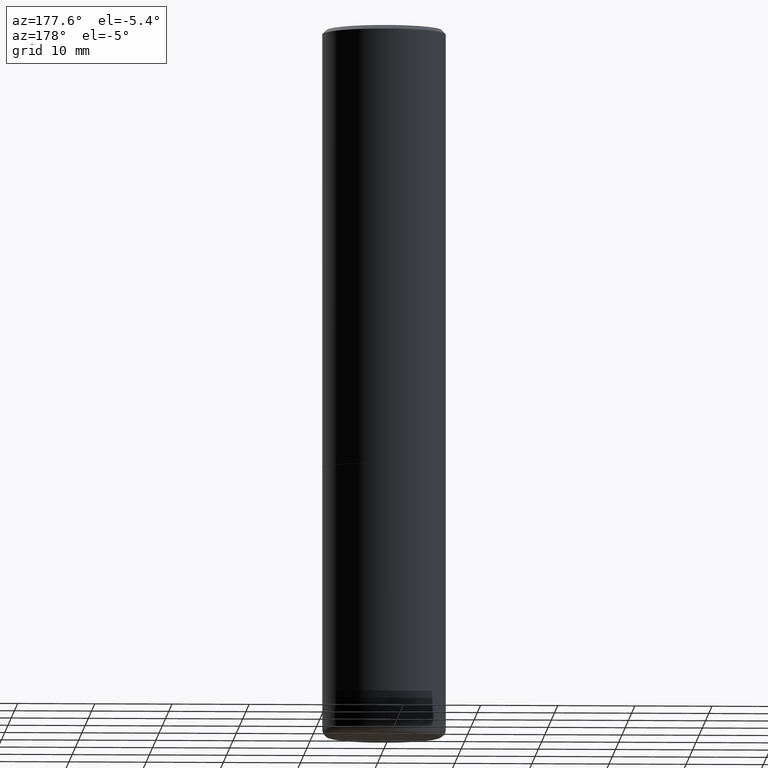
[diagram: clean part render]
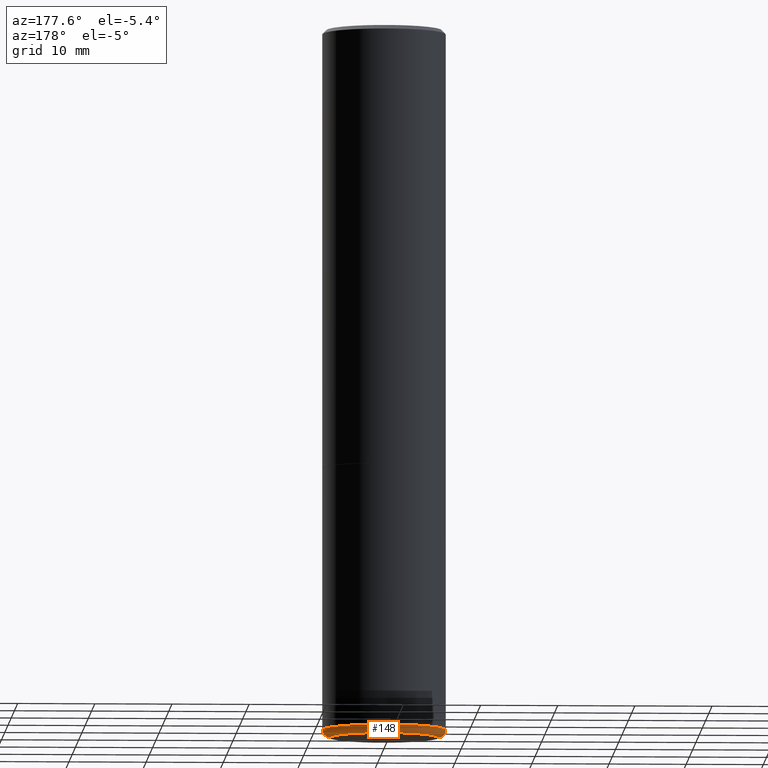
[diagram: same view with one face highlighted and labeled with its STEP entity id]
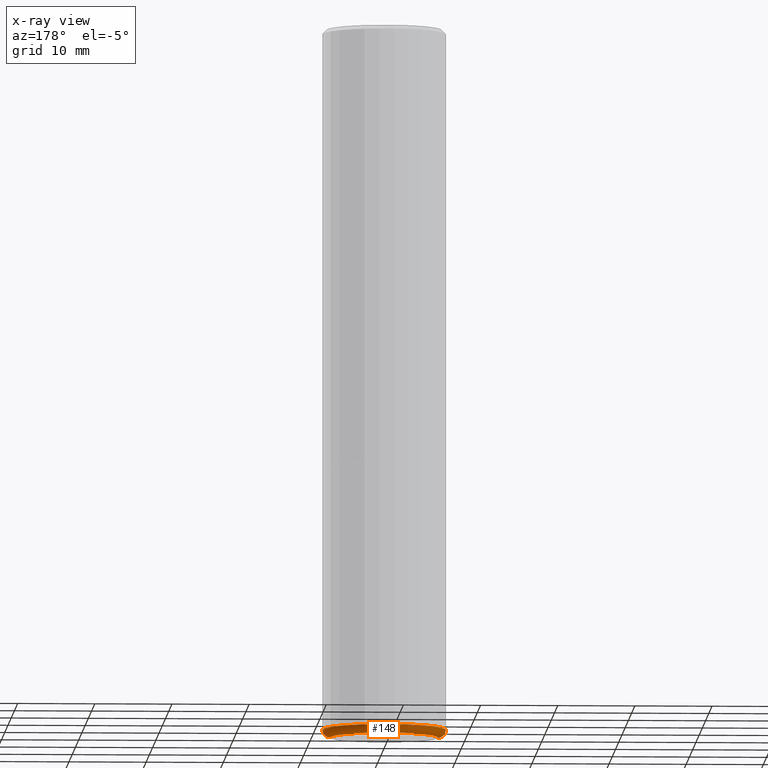
[diagram: x-ray of the same camera — body ghosted, the highlighted face saturated]
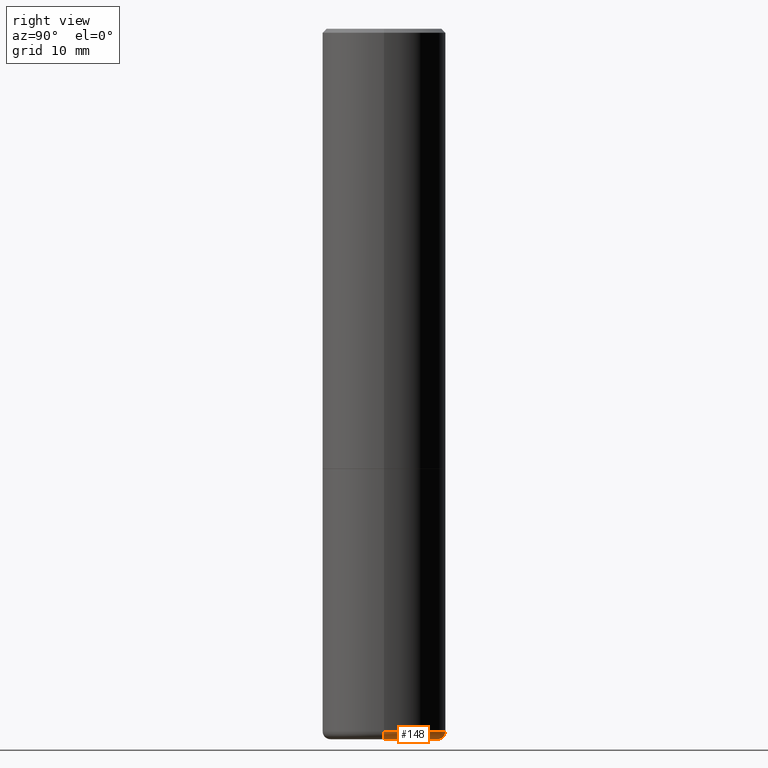
[diagram: same view with one face highlighted and labeled with its STEP entity id]
A machine part, auxiliary view. The second image highlights one B-rep face of the part: STEP entity #148.
The next image is the same camera in x-ray: the body ghosted, the highlighted face saturated — about 0% of this face is hidden behind the body in this view.
A second angle (right view) of the same face is appended — the face is thin or edge-on in the first view.
In plain terms, the highlighted toroidal blend (fillet) surface has major radius 6.999 mm and minor (blend) radius 1.0008 mm.
Its self-contained STEP definition (entity closure, byte-faithful):
#8 = DIRECTION ( 'NONE',  ( -1.000000000000000000, 7.105427357601001859E-15, 0.000000000000000000 ) ) ;
#13 = ORIENTED_EDGE ( 'NONE', *, *, #220, .T. ) ;
#14 = AXIS2_PLACEMENT_3D ( 'NONE', #88, #246, #8 ) ;
#26 = CARTESIAN_POINT ( 'NONE',  ( 0.3149500000000001743, -1.470786513987674265E-14, -3.582599999999999785 ) ) ;
#27 = DIRECTION ( 'NONE',  ( -2.445468806185136597E-29, 3.491481338843145583E-15, 1.000000000000000000 ) ) ;
#32 = AXIS2_PLACEMENT_3D ( 'NONE', #129, #165, #194 ) ;
#35 = CIRCLE ( 'NONE', #262, 0.2755500000000000171 ) ;
#37 = EDGE_CURVE ( 'NONE', #381, #358, #245, .T. ) ;
#58 = CARTESIAN_POINT ( 'NONE',  ( 0.2755500000000000171, -1.457030077512632343E-14, -3.621999999999999886 ) ) ;
#75 = VERTEX_POINT ( 'NONE', #367 ) ;
#78 = EDGE_CURVE ( 'NONE', #358, #410, #363, .T. ) ;
#88 = CARTESIAN_POINT ( 'NONE',  ( -0.2755500000000000171, -1.055068053615249541E-14, -3.582599999999999785 ) ) ;
#116 = DIRECTION ( 'NONE',  ( 1.000000000000000000, -6.982962677686266711E-15, 4.883557194083112901E-29 ) ) ;
#120 = DIRECTION ( 'NONE',  ( -2.445468806185136597E-29, 3.491481338843145583E-15, 1.000000000000000000 ) ) ;
#124 = ORIENTED_EDGE ( 'NONE', *, *, #37, .F. ) ;
#129 = CARTESIAN_POINT ( 'NONE',  ( 0.2755500000000000171, -1.443273641037590422E-14, -3.582599999999999785 ) ) ;
#148 = ADVANCED_FACE ( 'NONE', ( #174 ), #248, .T. ) ;
#155 = DIRECTION ( 'NONE',  ( -2.445468806185136597E-29, 3.491481338843145583E-15, 1.000000000000000000 ) ) ;
#165 = DIRECTION ( 'NONE',  ( -6.982962677686266711E-15, -1.000000000000000000, 3.491481338843145583E-15 ) ) ;
#174 = FACE_OUTER_BOUND ( 'NONE', #330, .T. ) ;
#178 = CARTESIAN_POINT ( 'NONE',  ( 8.761136545038868759E-29, -1.250858104453945120E-14, -3.582599999999999785 ) ) ;
#188 = CARTESIAN_POINT ( 'NONE',  ( 8.857488016002564476E-29, -1.264614540928987199E-14, -3.621999999999999886 ) ) ;
#194 = DIRECTION ( 'NONE',  ( 1.000000000000000000, -6.982962677686255667E-15, 0.000000000000000000 ) ) ;
#217 = DIRECTION ( 'NONE',  ( 1.000000000000000000, -6.982962677686268288E-15, 0.000000000000000000 ) ) ;
#220 = EDGE_CURVE ( 'NONE', #381, #75, #35, .T. ) ;
#245 = CIRCLE ( 'NONE', #32, 0.03940000000000012936 ) ;
#246 = DIRECTION ( 'NONE',  ( 7.105427357601001859E-15, 1.000000000000000000, -3.491481338843145583E-15 ) ) ;
#248 = TOROIDAL_SURFACE ( 'NONE', #418, 0.2755500000000000171, 0.03940000000000009467 ) ;
#261 = AXIS2_PLACEMENT_3D ( 'NONE', #278, #120, #217 ) ;
#262 = AXIS2_PLACEMENT_3D ( 'NONE', #188, #27, #316 ) ;
#265 = EDGE_CURVE ( 'NONE', #75, #410, #356, .T. ) ;
#278 = CARTESIAN_POINT ( 'NONE',  ( 8.761136545038868759E-29, -1.250858104453945120E-14, -3.582599999999999785 ) ) ;
#291 = ORIENTED_EDGE ( 'NONE', *, *, #78, .F. ) ;
#302 = CARTESIAN_POINT ( 'NONE',  ( -0.3149500000000001743, -1.027072669826301521E-14, -3.582599999999999785 ) ) ;
#316 = DIRECTION ( 'NONE',  ( 1.000000000000000000, -6.982962677686268288E-15, 0.000000000000000000 ) ) ;
#330 = EDGE_LOOP ( 'NONE', ( #13, #392, #291, #124 ) ) ;
#356 = CIRCLE ( 'NONE', #14, 0.03940000000000012936 ) ;
#358 = VERTEX_POINT ( 'NONE', #26 ) ;
#363 = CIRCLE ( 'NONE', #261, 0.3149500000000000632 ) ;
#367 = CARTESIAN_POINT ( 'NONE',  ( -0.2755500000000000171, -1.047948579958296492E-14, -3.621999999999999886 ) ) ;
#381 = VERTEX_POINT ( 'NONE', #58 ) ;
#392 = ORIENTED_EDGE ( 'NONE', *, *, #265, .T. ) ;
#410 = VERTEX_POINT ( 'NONE', #302 ) ;
#418 = AXIS2_PLACEMENT_3D ( 'NONE', #178, #155, #116 ) ;